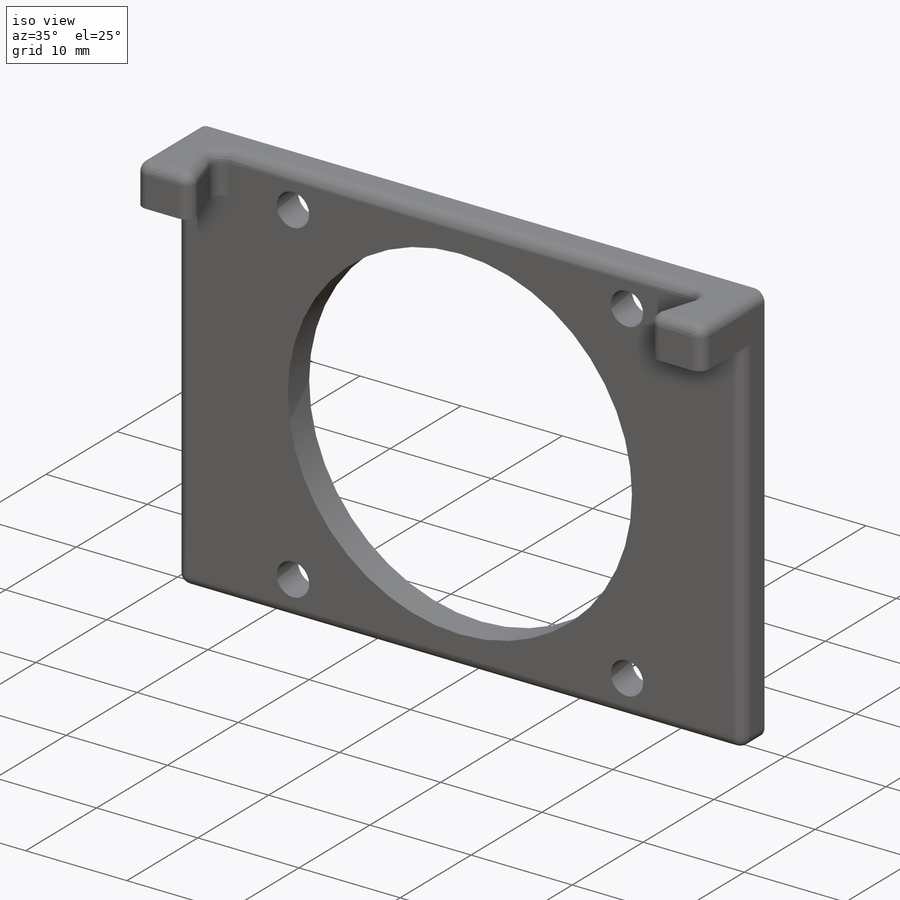
[diagram: iso view]
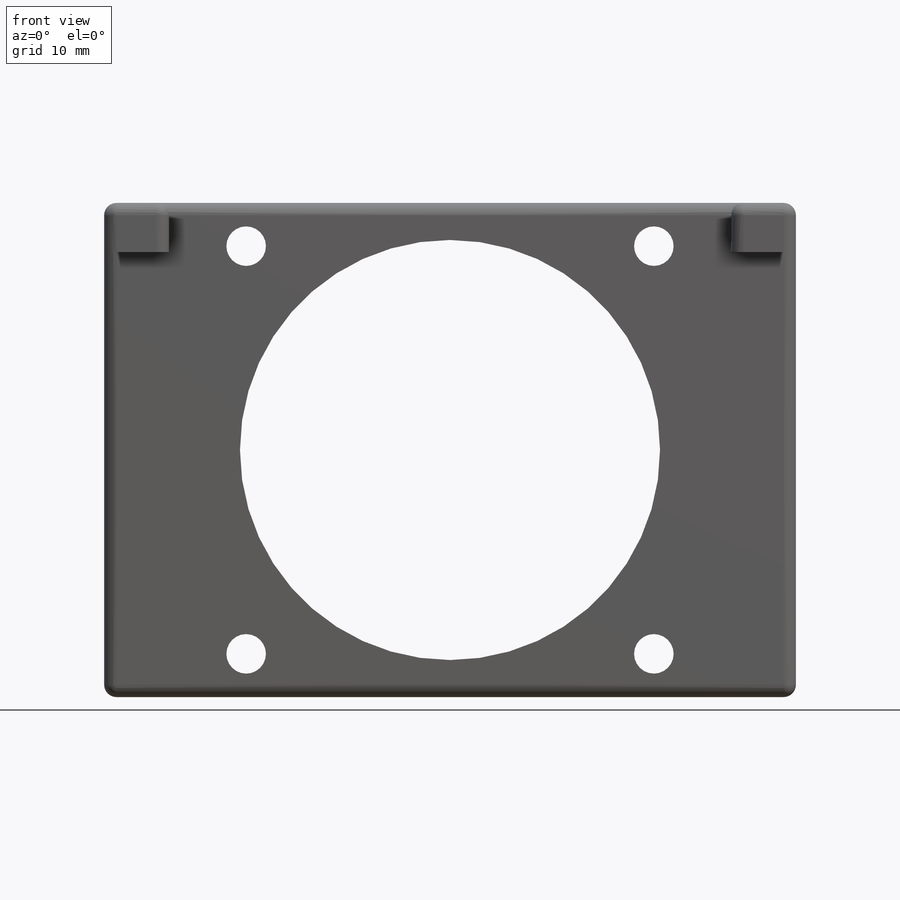
[diagram: front view]
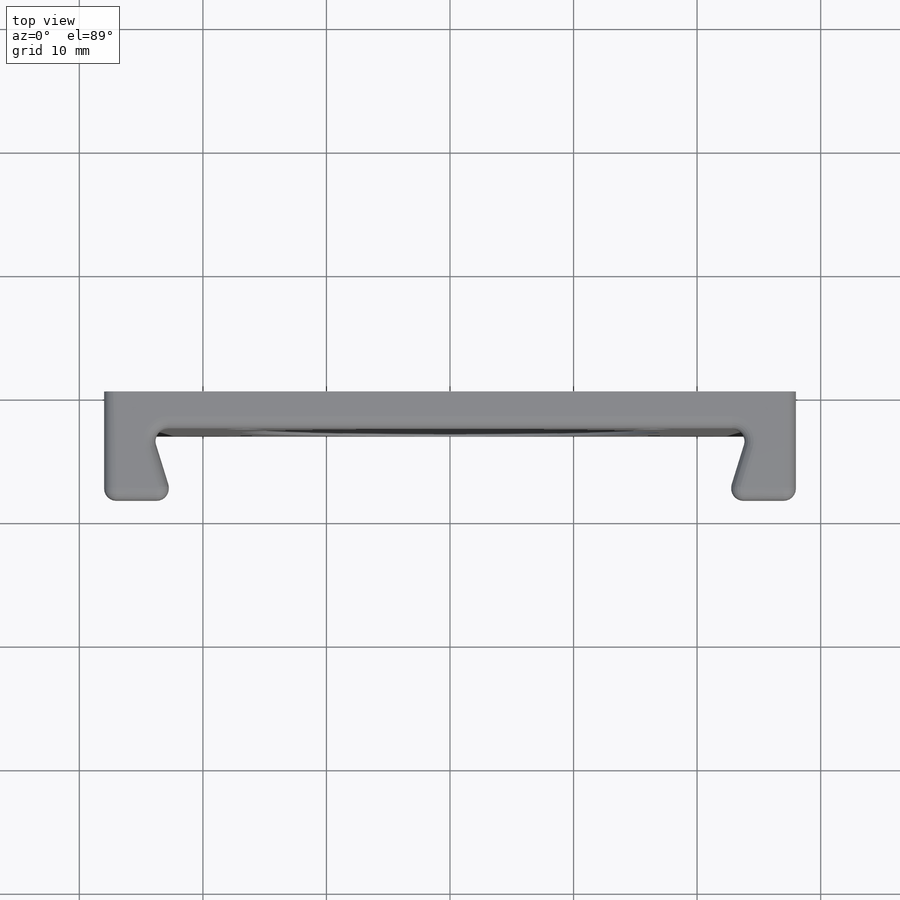
[diagram: top view]
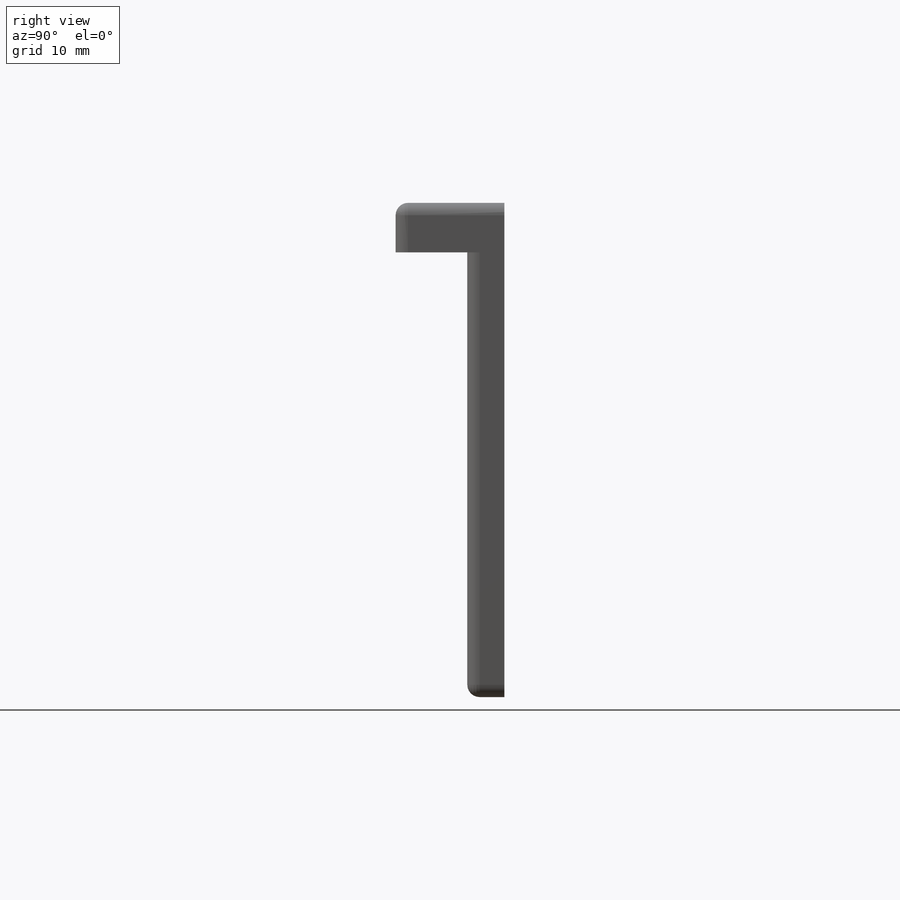
[diagram: right view]
SOLIDWORKS PART (.sldprt)
format: sldprt  version: not decoded by parser v0  size: 266,752 bytes
history: native  units: mm
features: sketch x5, plane x3, extrude x3, cut_extrude x2, material x1, fillet x1 (+8 scaffold rows collapsed)
feature tree (23):
  scaffold x8  (default folders/planes/origin — collapsed)
  material  "Matériau <non spécifié>"
  plane  "Plan de face"
  plane  "Plan de dessus"
  plane  "Plan de droite"
  sketch  "Esquisse1"  dims[D1=56.0mm D2=40.0mm D3=28.0mm D4=20.0mm]
  extrude  "Boss.-Extru.1"  Depth=3mm
  sketch  "Esquisse2"  dims[D1=4.0mm D2=4.0mm D3=3.8mm D4=3.8mm]
  extrude  "Boss.-Extru.2"  Depth=5.8mm
  sketch  "Esquisse3"  dims[D1=1.8mm D2=1.8mm]
  extrude  "Boss.-Extru.3"  [1 undecoded]
  fillet  "Congé1"  Radius=1mm
  sketch  "Esquisse4"  dims[D3=3.2mm D4=3.2mm D5=3.2mm D6=3.2mm D1=40.0mm D2=20.0mm D7=3.5mm D8=3.5mm D9=3.5mm D10=3.5mm D11=3.5mm D12=3.5mm D13=3.5mm D14=3.5mm]
  cut_extrude  "Enlèv. mat.-Extru.1"  [1 undecoded]
  sketch  "Esquisse5"  dims[D1=34.0mm]
  cut_extrude  "Enlèv. mat.-Extru.2"  [1 undecoded]
decode coverage: 8 of 11 modeling features carry decoded parameters
note: 3 parameter values undecoded
summary: no parameter record found for 3 features
note: suppression state not decoded; provenance and decode notes live in map.json
